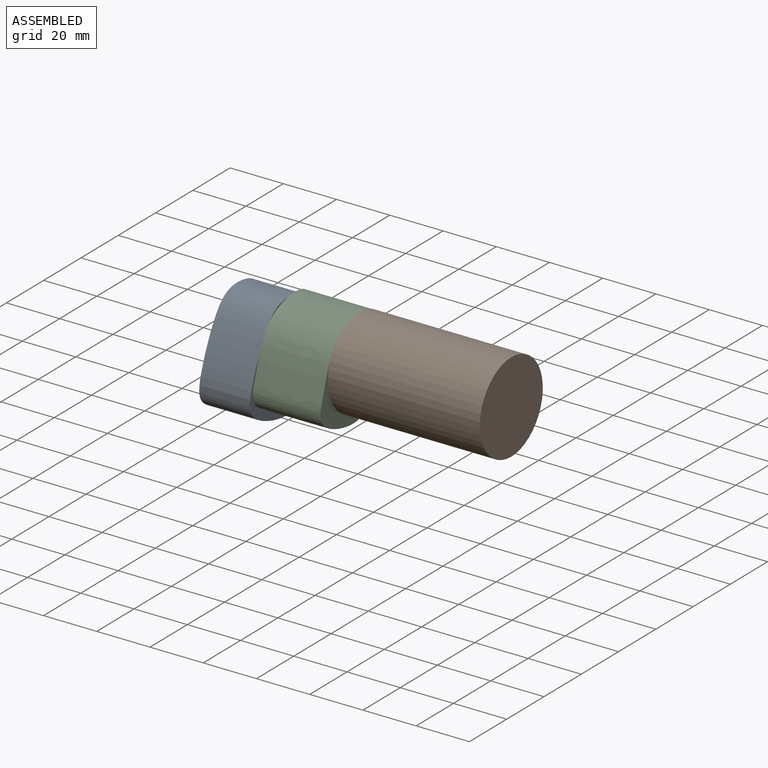
[diagram: assembled view]
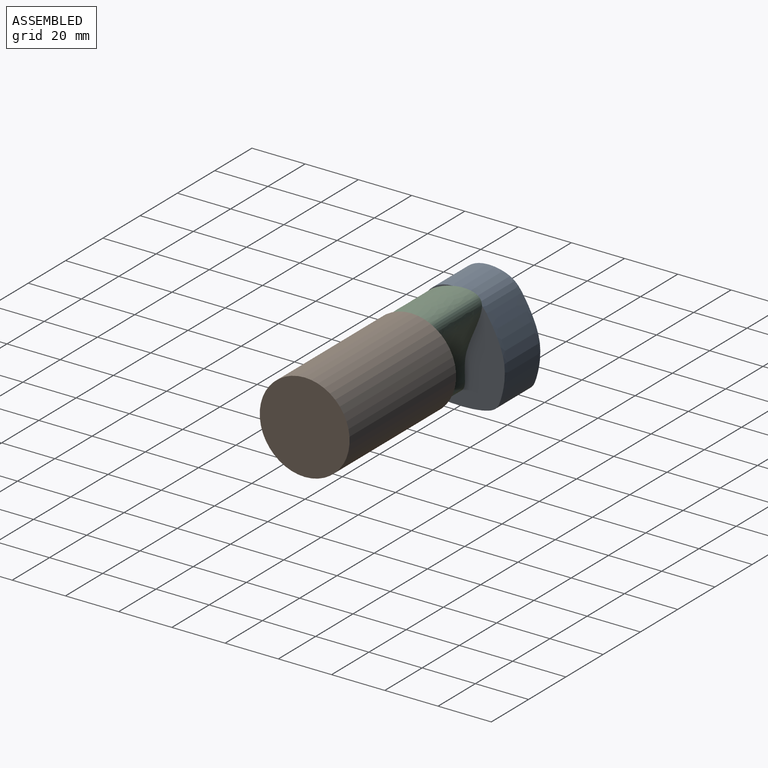
[diagram: assembled view, second angle]
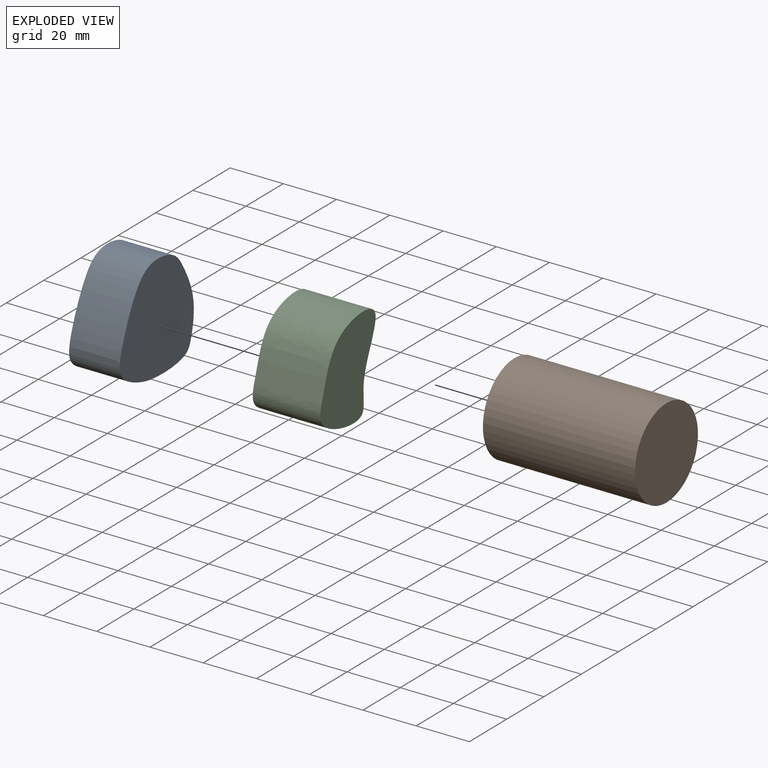
[diagram: exploded view]
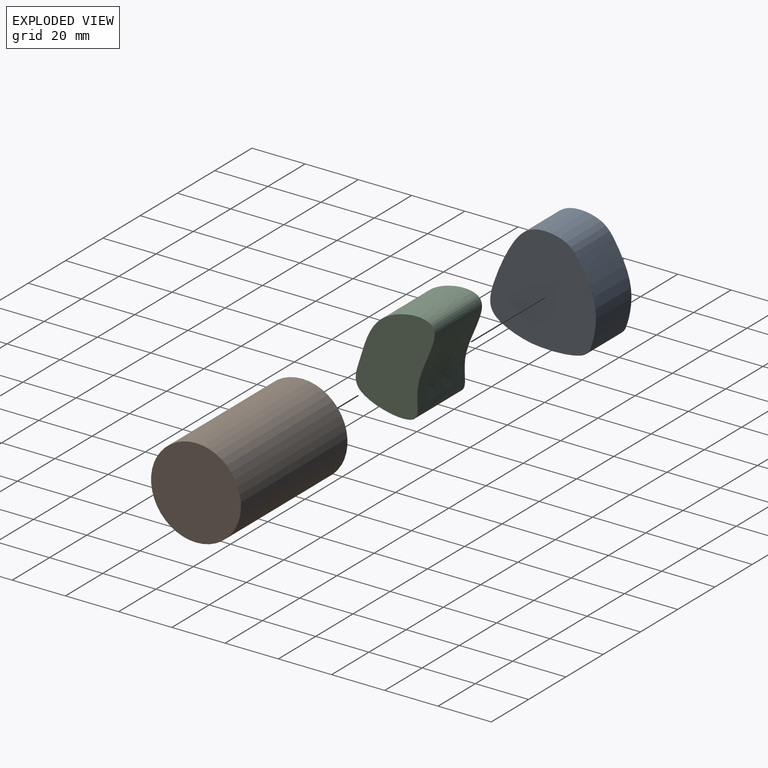
[diagram: exploded view, second angle]
ASSEMBLY  parts=3 mates=2
PART A: 3 faces, bbox 19.1x40.5x40.7 mm
  f0: extruded ~39.98x39.64mm, area 2431.5mm2, adj f1,f2
  f1: plane 40.74x40.46mm, normal (1,0,0), area 1240.7mm2, adj f0
  f2: plane 40.74x40.46mm, normal (-1,0,0), area 1240.7mm2, adj f0
PART B: 3 faces, bbox 57.2x33.8x33.8 mm
  f0: cylinder r=16.89mm len=57.15mm, axis (-1,0,0), area 6065.3mm2, adj f1,f2
  f1: plane 33.78x33.78mm, normal (1,0,0), area 896.3mm2, adj f0
  f2: plane 33.78x33.78mm, normal (-1,0,0), area 896.3mm2, adj f0
PART C: 3 faces, bbox 25.4x31.6x38 mm
  f0: extruded ~36.02x29.6mm, area 2702.3mm2, adj f1,f2
  f1: plane 37.97x31.61mm, normal (1,0,0), area 746.9mm2, adj f0
  f2: plane 37.97x31.61mm, normal (-1,0,0), area 746.9mm2, adj f0
PLACE A t=(-19.05,-0.67,0.16)mm
PLACE B t=(53.98,1.66,5.69)mm
PLACE C t=(0,-2.75,4.49)mm fixed
MATE planar A.f1 <-> C.f2  axis (1,0,0) through (0,0,0)mm
MATE planar B.f0 <-> C.f1  axis (-1,0,0) through (25.4,1.66,5.69)mm
